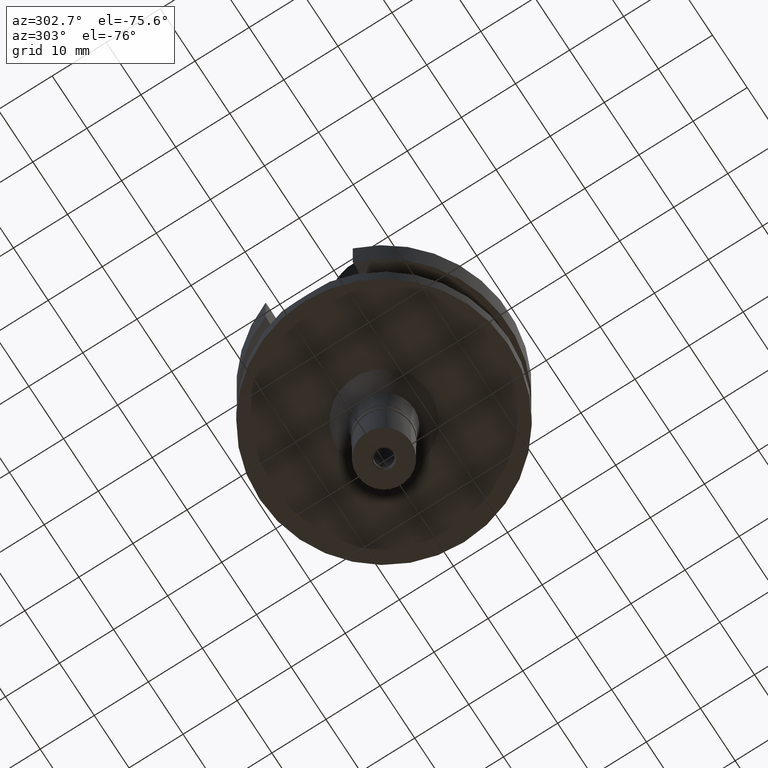
[diagram: clean part render]
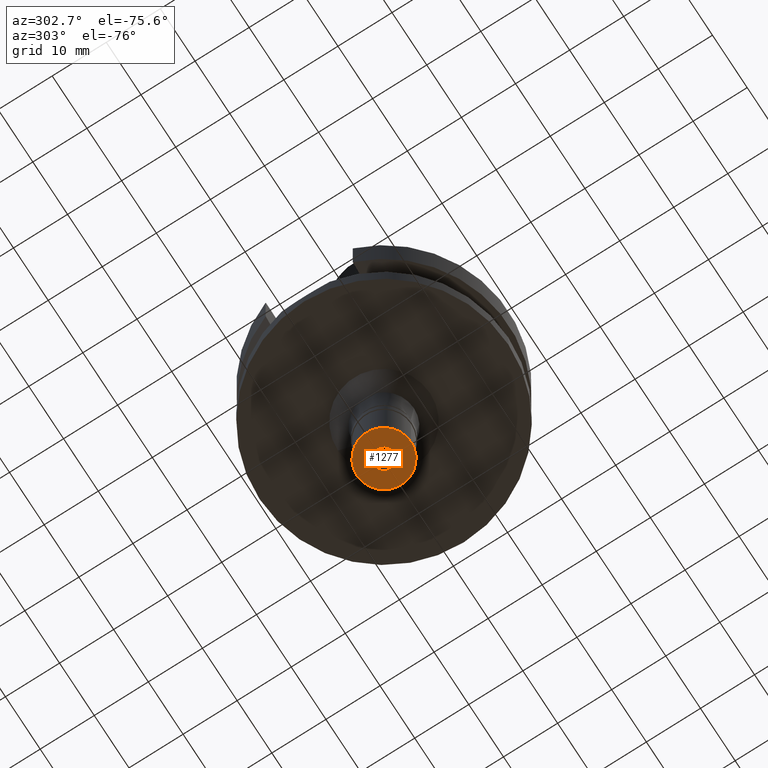
[diagram: same view with one face highlighted and labeled with its STEP entity id]
A machine part, auxiliary view. The second image highlights one B-rep face of the part: STEP entity #1277.
In plain terms, the highlighted planar face has unit normal (0, 0, 1).
Its self-contained STEP definition (entity closure, byte-faithful):
#76 = CARTESIAN_POINT ( 'NONE',  ( 0.0000000000000000000, -5.000000000000000000, -13.00000000000000000 ) ) ;
#215 = EDGE_CURVE ( 'NONE', #2794, #1440, #2814, .T. ) ;
#250 = DIRECTION ( 'NONE',  ( 1.000000000000000000, 0.0000000000000000000, 0.0000000000000000000 ) ) ;
#264 = EDGE_CURVE ( 'NONE', #2465, #2696, #800, .T. ) ;
#409 = CARTESIAN_POINT ( 'NONE',  ( 0.0000000000000000000, 0.0000000000000000000, -13.00000000000000000 ) ) ;
#453 = CARTESIAN_POINT ( 'NONE',  ( 0.0000000000000000000, 5.000000000000000000, -13.00000000000000000 ) ) ;
#482 = DIRECTION ( 'NONE',  ( 0.0000000000000000000, 0.0000000000000000000, -1.000000000000000000 ) ) ;
#487 = CARTESIAN_POINT ( 'NONE',  ( 0.0000000000000000000, -1.899999999999999911, -13.00000000000000000 ) ) ;
#669 = AXIS2_PLACEMENT_3D ( 'NONE', #711, #2532, #250 ) ;
#676 = CARTESIAN_POINT ( 'NONE',  ( 0.0000000000000000000, 0.0000000000000000000, -13.00000000000000000 ) ) ;
#697 = ORIENTED_EDGE ( 'NONE', *, *, #215, .F. ) ;
#711 = CARTESIAN_POINT ( 'NONE',  ( 0.0000000000000000000, 0.0000000000000000000, -13.00000000000000000 ) ) ;
#789 = CARTESIAN_POINT ( 'NONE',  ( 0.0000000000000000000, 1.899999999999999911, -13.00000000000000000 ) ) ;
#800 = CIRCLE ( 'NONE', #1196, 5.000000000000000000 ) ;
#837 = DIRECTION ( 'NONE',  ( 0.0000000000000000000, -1.000000000000000000, 0.0000000000000000000 ) ) ;
#948 = EDGE_LOOP ( 'NONE', ( #1358, #2119 ) ) ;
#1196 = AXIS2_PLACEMENT_3D ( 'NONE', #1801, #1575, #2217 ) ;
#1277 = ADVANCED_FACE ( 'NONE', ( #1349, #2293 ), #2086, .F. ) ;
#1349 = FACE_OUTER_BOUND ( 'NONE', #948, .T. ) ;
#1358 = ORIENTED_EDGE ( 'NONE', *, *, #2946, .F. ) ;
#1440 = VERTEX_POINT ( 'NONE', #789 ) ;
#1575 = DIRECTION ( 'NONE',  ( 0.0000000000000000000, 0.0000000000000000000, 1.000000000000000000 ) ) ;
#1675 = DIRECTION ( 'NONE',  ( 0.0000000000000000000, 0.0000000000000000000, 1.000000000000000000 ) ) ;
#1692 = EDGE_CURVE ( 'NONE', #1440, #2794, #1889, .T. ) ;
#1741 = CARTESIAN_POINT ( 'NONE',  ( 0.0000000000000000000, 0.0000000000000000000, -13.00000000000000000 ) ) ;
#1801 = CARTESIAN_POINT ( 'NONE',  ( 0.0000000000000000000, 0.0000000000000000000, -13.00000000000000000 ) ) ;
#1870 = AXIS2_PLACEMENT_3D ( 'NONE', #1741, #1675, #1953 ) ;
#1889 = CIRCLE ( 'NONE', #2634, 1.899999999999999911 ) ;
#1953 = DIRECTION ( 'NONE',  ( 0.0000000000000000000, 1.000000000000000000, 0.0000000000000000000 ) ) ;
#2086 = PLANE ( 'NONE',  #669 ) ;
#2119 = ORIENTED_EDGE ( 'NONE', *, *, #264, .F. ) ;
#2216 = EDGE_LOOP ( 'NONE', ( #2499, #697 ) ) ;
#2217 = DIRECTION ( 'NONE',  ( 0.0000000000000000000, -1.000000000000000000, 0.0000000000000000000 ) ) ;
#2293 = FACE_BOUND ( 'NONE', #2216, .T. ) ;
#2360 = DIRECTION ( 'NONE',  ( 0.0000000000000000000, 1.000000000000000000, 0.0000000000000000000 ) ) ;
#2465 = VERTEX_POINT ( 'NONE', #76 ) ;
#2499 = ORIENTED_EDGE ( 'NONE', *, *, #1692, .F. ) ;
#2532 = DIRECTION ( 'NONE',  ( 0.0000000000000000000, 0.0000000000000000000, 1.000000000000000000 ) ) ;
#2634 = AXIS2_PLACEMENT_3D ( 'NONE', #676, #482, #2360 ) ;
#2696 = VERTEX_POINT ( 'NONE', #453 ) ;
#2769 = AXIS2_PLACEMENT_3D ( 'NONE', #409, #2960, #837 ) ;
#2794 = VERTEX_POINT ( 'NONE', #487 ) ;
#2814 = CIRCLE ( 'NONE', #2769, 1.899999999999999911 ) ;
#2815 = CIRCLE ( 'NONE', #1870, 5.000000000000000000 ) ;
#2946 = EDGE_CURVE ( 'NONE', #2696, #2465, #2815, .T. ) ;
#2960 = DIRECTION ( 'NONE',  ( 0.0000000000000000000, 0.0000000000000000000, -1.000000000000000000 ) ) ;